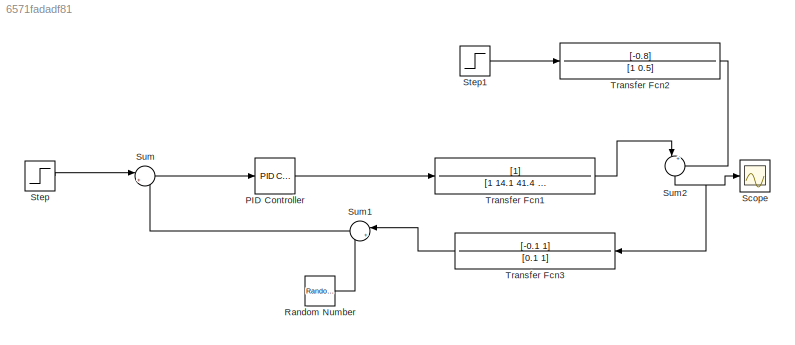
MODEL slx_6571fadadf81
KIND model
CONFIG AbsTol = auto
CONFIG FixedStep = auto
CONFIG MaxStep = auto
CONFIG MinStep = auto
CONFIG RelTol = 1e-3
CONFIG SampleTimeConstraint = Unconstrained
CONFIG Solver = VariableStepAuto
CONFIG SolverMode = Auto
CONFIG SolverName = VariableStepAuto
CONFIG StartTime = 0.0
CONFIG StopTime = 10.0
BLOCK [Reference] PID Controller  REF=simulink/Continuous/PID Controller
  Ports = [1, 1]
  SourceBlock = simulink/Continuous/PID Controller
  SourceType = PID 1dof
BLOCK [RandomNumber] Random Number
  SampleTime = 0.1
  Variance = 36
BLOCK [Scope] Scope
  Ports = [1]
  ScopeSpecificationString = Simulink.scopes.TimeScopeBlockCfg('CurrentConfiguration', extmgr.ConfigurationSet(extmgr.Configuration('Core','General UI',true),extmgr.Configuration('Core','Source UI',true),extmgr.Configuration('Sources','WiredSimulink',true),extmgr.Configuration('Visuals','Time Domain',true,'SerializedDisplays',{struct('MinYLimReal','-84.38941','MaxYLimReal','283.83214','YLabelReal','','MinYLimMag','0.00000','M...<+1502ch>
BLOCK [Step] Step
  After = 100
  SampleTime = 0
BLOCK [Step] Step1
  After = 10
  SampleTime = 0
BLOCK [Sum] Sum
  IconShape = round
  InputSameDT = off
  Inputs = |+-
  OutDataTypeStr = Inherit: Inherit via internal rule
  Ports = [2, 1]
  SaturateOnIntegerOverflow = off
BLOCK [Sum] Sum1
  IconShape = round
  InputSameDT = off
  Inputs = |++
  OutDataTypeStr = Inherit: Inherit via internal rule
  Ports = [2, 1]
  SaturateOnIntegerOverflow = off
BLOCK [Sum] Sum2
  IconShape = round
  InputSameDT = off
  Inputs = |++
  OutDataTypeStr = Inherit: Inherit via internal rule
  Ports = [2, 1]
  SaturateOnIntegerOverflow = off
BLOCK [TransferFcn] Transfer Fcn1
  Denominator = [1 14.1 41.4 4]
BLOCK [TransferFcn] Transfer Fcn2
  Denominator = [1 0.5]
  Numerator = [-0.8]
BLOCK [TransferFcn] Transfer Fcn3
  Denominator = [0.1 1]
  Numerator = [-0.1 1]
LINE PID Controller:1 -> Transfer Fcn1:1
LINE Random Number:1 -> Sum1:2
LINE Step1:1 -> Transfer Fcn2:1
LINE Step:1 -> Sum:1
LINE Sum1:1 -> Sum:2
NET Sum2:1 -> Scope:1, Transfer Fcn3:1
LINE Sum:1 -> PID Controller:1
LINE Transfer Fcn1:1 -> Sum2:1
LINE Transfer Fcn2:1 -> Sum2:2
LINE Transfer Fcn3:1 -> Sum1:1
note: NET lines group one-source signal fan-out (src -> all destinations, sorted); 1:1 wires keep LINE
